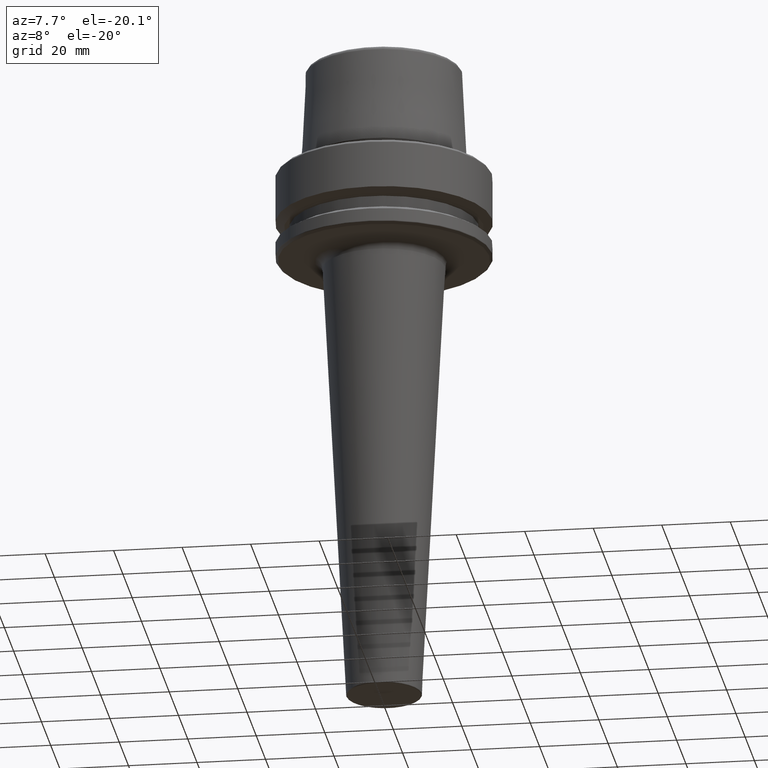
[diagram: clean part render]
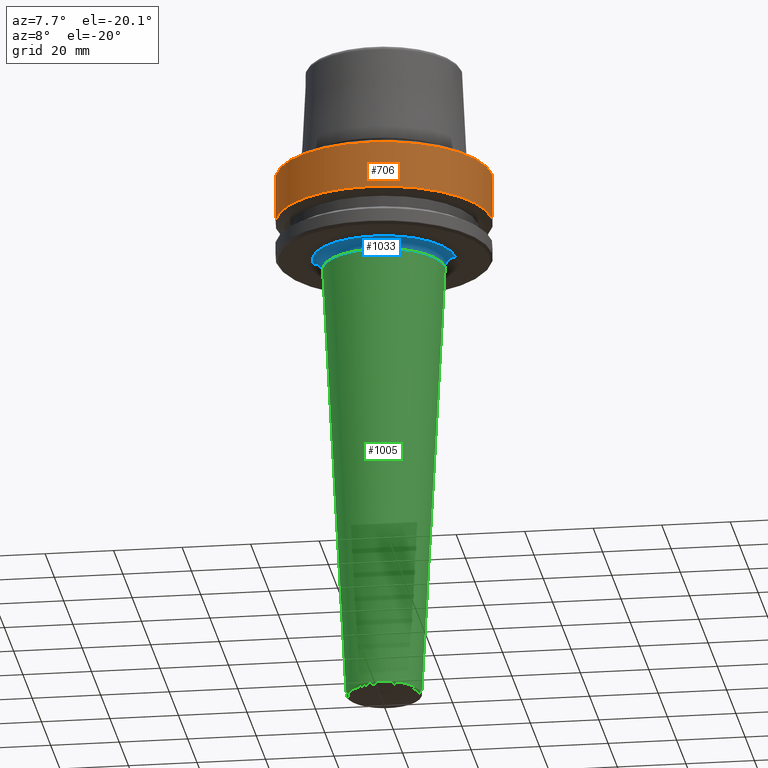
[diagram: same view with three faces highlighted in distinct colors, each labeled with its STEP entity id]
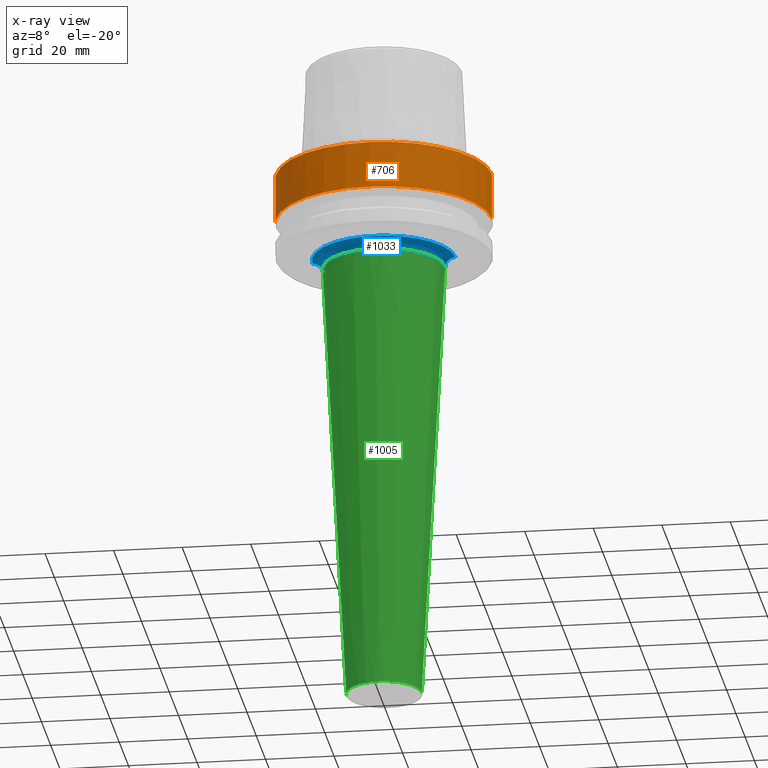
[diagram: x-ray of the same camera — body ghosted, the three highlighted faces saturated]
A machine part, auxiliary view with three faces highlighted in distinct colors.
The next image is the same camera in x-ray (body ghosted, the three faces saturated) — at least one of them is partly hidden behind the body in this view.
Their STEP definitions:

[orange] entity #706 — the highlighted cylindrical surface (partial cylindrical patch) has radius 31.5 mm, axis along (-0, -0, 1).
#16 = AXIS2_PLACEMENT_3D ( 'NONE', #748, #1180, #571 ) ;
#28 = CARTESIAN_POINT ( 'NONE',  ( -31.50000000000000700, 3.857637417314163500E-015, -0.9656854249492363700 ) ) ;
#32 = ORIENTED_EDGE ( 'NONE', *, *, #811, .T. ) ;
#53 = VECTOR ( 'NONE', #508, 1000.000000000000000 ) ;
#85 = DIRECTION ( 'NONE',  ( -0.0000000000000000000, -0.0000000000000000000, 1.000000000000000000 ) ) ;
#90 = VERTEX_POINT ( 'NONE', #743 ) ;
#233 = EDGE_CURVE ( 'NONE', #624, #295, #541, .T. ) ;
#252 = CARTESIAN_POINT ( 'NONE',  ( 0.0000000000000000000, 0.0000000000000000000, -0.9656854249492363700 ) ) ;
#295 = VERTEX_POINT ( 'NONE', #445 ) ;
#325 = AXIS2_PLACEMENT_3D ( 'NONE', #252, #85, #769 ) ;
#347 = LINE ( 'NONE', #973, #53 ) ;
#363 = FACE_OUTER_BOUND ( 'NONE', #1024, .T. ) ;
#371 = VERTEX_POINT ( 'NONE', #515 ) ;
#415 = AXIS2_PLACEMENT_3D ( 'NONE', #831, #1222, #759 ) ;
#417 = ORIENTED_EDGE ( 'NONE', *, *, #443, .T. ) ;
#443 = EDGE_CURVE ( 'NONE', #371, #295, #703, .T. ) ;
#445 = CARTESIAN_POINT ( 'NONE',  ( 31.50000000000000700, 0.0000000000000000000, -0.9656854249492363700 ) ) ;
#476 = DIRECTION ( 'NONE',  ( -0.0000000000000000000, -0.0000000000000000000, 1.000000000000000000 ) ) ;
#508 = DIRECTION ( 'NONE',  ( -0.0000000000000000000, -0.0000000000000000000, 1.000000000000000000 ) ) ;
#515 = CARTESIAN_POINT ( 'NONE',  ( 31.50000000000000000, 0.0000000000000000000, -14.62250092524070100 ) ) ;
#541 = CIRCLE ( 'NONE', #325, 31.50000000000000700 ) ;
#571 = DIRECTION ( 'NONE',  ( 1.000000000000000000, 0.0000000000000000000, 0.0000000000000000000 ) ) ;
#624 = VERTEX_POINT ( 'NONE', #28 ) ;
#630 = ORIENTED_EDGE ( 'NONE', *, *, #233, .F. ) ;
#657 = CIRCLE ( 'NONE', #16, 31.50000000000000000 ) ;
#676 = EDGE_CURVE ( 'NONE', #90, #624, #347, .T. ) ;
#703 = LINE ( 'NONE', #851, #855 ) ;
#706 = ADVANCED_FACE ( 'NONE', ( #363 ), #1132, .T. ) ;
#743 = CARTESIAN_POINT ( 'NONE',  ( -31.50000000000000000, 3.857637417314162700E-015, -14.62250092524070100 ) ) ;
#748 = CARTESIAN_POINT ( 'NONE',  ( 0.0000000000000000000, 0.0000000000000000000, -14.62250092524070100 ) ) ;
#759 = DIRECTION ( 'NONE',  ( 1.000000000000000000, 0.0000000000000000000, 0.0000000000000000000 ) ) ;
#769 = DIRECTION ( 'NONE',  ( 1.000000000000000000, 0.0000000000000000000, 0.0000000000000000000 ) ) ;
#811 = EDGE_CURVE ( 'NONE', #90, #371, #657, .T. ) ;
#831 = CARTESIAN_POINT ( 'NONE',  ( 0.0000000000000000000, 0.0000000000000000000, 78.96908074195309300 ) ) ;
#851 = CARTESIAN_POINT ( 'NONE',  ( 31.50000000000000000, 0.0000000000000000000, 78.96908074195309300 ) ) ;
#855 = VECTOR ( 'NONE', #476, 1000.000000000000000 ) ;
#973 = CARTESIAN_POINT ( 'NONE',  ( -31.50000000000000000, 3.857637417314162700E-015, 78.96908074195309300 ) ) ;
#1024 = EDGE_LOOP ( 'NONE', ( #1116, #32, #417, #630 ) ) ;
#1116 = ORIENTED_EDGE ( 'NONE', *, *, #676, .F. ) ;
#1132 = CYLINDRICAL_SURFACE ( 'NONE', #415, 31.50000000000000000 ) ;
#1180 = DIRECTION ( 'NONE',  ( -0.0000000000000000000, -0.0000000000000000000, 1.000000000000000000 ) ) ;
#1222 = DIRECTION ( 'NONE',  ( -0.0000000000000000000, -0.0000000000000000000, 1.000000000000000000 ) ) ;

[blue] entity #1033 — the highlighted toroidal blend (fillet) surface has major radius 20.8695 mm and minor (blend) radius 3 mm.
#22 = CARTESIAN_POINT ( 'NONE',  ( -17.87364751980845800, 2.188890522422145600E-015, -28.84299213127116700 ) ) ;
#39 = ORIENTED_EDGE ( 'NONE', *, *, #1190, .F. ) ;
#89 = CARTESIAN_POINT ( 'NONE',  ( 0.0000000000000000000, 0.0000000000000000000, -28.84299213127116700 ) ) ;
#91 = AXIS2_PLACEMENT_3D ( 'NONE', #1062, #956, #680 ) ;
#113 = DIRECTION ( 'NONE',  ( -0.0000000000000000000, -0.0000000000000000000, 1.000000000000000000 ) ) ;
#178 = FACE_OUTER_BOUND ( 'NONE', #1170, .T. ) ;
#192 = EDGE_CURVE ( 'NONE', #424, #761, #960, .T. ) ;
#216 = CIRCLE ( 'NONE', #843, 20.86953612407217700 ) ;
#224 = DIRECTION ( 'NONE',  ( 1.000000000000000000, 0.0000000000000000000, 0.0000000000000000000 ) ) ;
#411 = AXIS2_PLACEMENT_3D ( 'NONE', #558, #1242, #1140 ) ;
#424 = VERTEX_POINT ( 'NONE', #846 ) ;
#463 = VERTEX_POINT ( 'NONE', #22 ) ;
#466 = AXIS2_PLACEMENT_3D ( 'NONE', #1011, #971, #939 ) ;
#469 = ORIENTED_EDGE ( 'NONE', *, *, #1172, .T. ) ;
#487 = DIRECTION ( 'NONE',  ( 0.0000000000000000000, 0.0000000000000000000, -1.000000000000000000 ) ) ;
#488 = CARTESIAN_POINT ( 'NONE',  ( -20.86953612407217700, 2.555781061403505100E-015, -26.00000000000000400 ) ) ;
#558 = CARTESIAN_POINT ( 'NONE',  ( 20.86953612407217700, 0.0000000000000000000, -28.99999999999999600 ) ) ;
#590 = CARTESIAN_POINT ( 'NONE',  ( 0.0000000000000000000, 0.0000000000000000000, -26.00000000000000700 ) ) ;
#677 = ORIENTED_EDGE ( 'NONE', *, *, #1105, .F. ) ;
#680 = DIRECTION ( 'NONE',  ( -1.000000000000000000, 1.224646799147353500E-016, 0.0000000000000000000 ) ) ;
#709 = TOROIDAL_SURFACE ( 'NONE', #466, 20.86953612407217700, 3.000000000000000000 ) ;
#710 = CIRCLE ( 'NONE', #91, 2.999999999999999100 ) ;
#761 = VERTEX_POINT ( 'NONE', #837 ) ;
#800 = ORIENTED_EDGE ( 'NONE', *, *, #192, .F. ) ;
#837 = CARTESIAN_POINT ( 'NONE',  ( 17.87364751980845800, 0.0000000000000000000, -28.84299213127116700 ) ) ;
#843 = AXIS2_PLACEMENT_3D ( 'NONE', #590, #113, #224 ) ;
#846 = CARTESIAN_POINT ( 'NONE',  ( 20.86953612407217700, 0.0000000000000000000, -26.00000000000000400 ) ) ;
#921 = DIRECTION ( 'NONE',  ( 1.000000000000000000, 0.0000000000000000000, 0.0000000000000000000 ) ) ;
#939 = DIRECTION ( 'NONE',  ( 1.000000000000000000, 0.0000000000000000000, 0.0000000000000000000 ) ) ;
#956 = DIRECTION ( 'NONE',  ( 1.224646799147353200E-016, 1.000000000000000000, 0.0000000000000000000 ) ) ;
#960 = CIRCLE ( 'NONE', #411, 3.000000000000002700 ) ;
#971 = DIRECTION ( 'NONE',  ( -0.0000000000000000000, -0.0000000000000000000, 1.000000000000000000 ) ) ;
#1011 = CARTESIAN_POINT ( 'NONE',  ( 0.0000000000000000000, 0.0000000000000000000, -28.99999999999999600 ) ) ;
#1033 = ADVANCED_FACE ( 'NONE', ( #178 ), #709, .F. ) ;
#1053 = CIRCLE ( 'NONE', #1246, 17.87364751980845800 ) ;
#1062 = CARTESIAN_POINT ( 'NONE',  ( -20.86953612407217700, 2.555781061403505100E-015, -28.99999999999999600 ) ) ;
#1105 = EDGE_CURVE ( 'NONE', #761, #463, #1053, .T. ) ;
#1140 = DIRECTION ( 'NONE',  ( 0.0000000000000000000, 0.0000000000000000000, -1.000000000000000000 ) ) ;
#1170 = EDGE_LOOP ( 'NONE', ( #39, #469, #677, #800 ) ) ;
#1172 = EDGE_CURVE ( 'NONE', #1250, #463, #710, .T. ) ;
#1190 = EDGE_CURVE ( 'NONE', #1250, #424, #216, .T. ) ;
#1242 = DIRECTION ( 'NONE',  ( 0.0000000000000000000, -1.000000000000000000, 0.0000000000000000000 ) ) ;
#1246 = AXIS2_PLACEMENT_3D ( 'NONE', #89, #487, #921 ) ;
#1250 = VERTEX_POINT ( 'NONE', #488 ) ;

[green] entity #1005 — the highlighted conical surface has half-angle 3 deg.
#22 = CARTESIAN_POINT ( 'NONE',  ( -17.87364751980845800, 2.188890522422145600E-015, -28.84299213127116700 ) ) ;
#38 = EDGE_CURVE ( 'NONE', #701, #463, #405, .T. ) ;
#89 = CARTESIAN_POINT ( 'NONE',  ( 0.0000000000000000000, 0.0000000000000000000, -28.84299213127116700 ) ) ;
#126 = VECTOR ( 'NONE', #629, 1000.000000000000100 ) ;
#228 = ORIENTED_EDGE ( 'NONE', *, *, #1105, .T. ) ;
#263 = CARTESIAN_POINT ( 'NONE',  ( -11.01986598721588200, 1.349544360827671700E-015, -159.6209343824971300 ) ) ;
#272 = FACE_OUTER_BOUND ( 'NONE', #997, .T. ) ;
#348 = CARTESIAN_POINT ( 'NONE',  ( -11.01986598721587800, 1.349544360827671300E-015, -159.6209343824971300 ) ) ;
#359 = LINE ( 'NONE', #768, #532 ) ;
#405 = LINE ( 'NONE', #348, #126 ) ;
#406 = DIRECTION ( 'NONE',  ( 1.000000000000000000, 0.0000000000000000000, 0.0000000000000000000 ) ) ;
#463 = VERTEX_POINT ( 'NONE', #22 ) ;
#487 = DIRECTION ( 'NONE',  ( 0.0000000000000000000, 0.0000000000000000000, -1.000000000000000000 ) ) ;
#531 = CARTESIAN_POINT ( 'NONE',  ( 0.0000000000000000000, 0.0000000000000000000, -159.6209343824971300 ) ) ;
#532 = VECTOR ( 'NONE', #563, 1000.000000000000100 ) ;
#563 = DIRECTION ( 'NONE',  ( 0.05233595624294397300, 0.0000000000000000000, 0.9986295347545739400 ) ) ;
#629 = DIRECTION ( 'NONE',  ( -0.05233595624294397300, 6.409306129323727100E-018, 0.9986295347545739400 ) ) ;
#651 = ORIENTED_EDGE ( 'NONE', *, *, #679, .T. ) ;
#673 = CIRCLE ( 'NONE', #827, 11.01986598721587800 ) ;
#679 = EDGE_CURVE ( 'NONE', #701, #1092, #673, .T. ) ;
#701 = VERTEX_POINT ( 'NONE', #263 ) ;
#714 = DIRECTION ( 'NONE',  ( 1.000000000000000000, 0.0000000000000000000, 0.0000000000000000000 ) ) ;
#730 = CARTESIAN_POINT ( 'NONE',  ( 11.01986598721588200, 0.0000000000000000000, -159.6209343824971300 ) ) ;
#761 = VERTEX_POINT ( 'NONE', #837 ) ;
#762 = DIRECTION ( 'NONE',  ( -0.0000000000000000000, -0.0000000000000000000, 1.000000000000000000 ) ) ;
#768 = CARTESIAN_POINT ( 'NONE',  ( 11.01986598721587800, 0.0000000000000000000, -159.6209343824971300 ) ) ;
#827 = AXIS2_PLACEMENT_3D ( 'NONE', #833, #1018, #406 ) ;
#833 = CARTESIAN_POINT ( 'NONE',  ( 0.0000000000000000000, 0.0000000000000000000, -159.6209343824971300 ) ) ;
#837 = CARTESIAN_POINT ( 'NONE',  ( 17.87364751980845800, 0.0000000000000000000, -28.84299213127116700 ) ) ;
#921 = DIRECTION ( 'NONE',  ( 1.000000000000000000, 0.0000000000000000000, 0.0000000000000000000 ) ) ;
#927 = CONICAL_SURFACE ( 'NONE', #1095, 11.01986598721587800, 0.05235987755983002200 ) ;
#972 = ORIENTED_EDGE ( 'NONE', *, *, #38, .F. ) ;
#997 = EDGE_LOOP ( 'NONE', ( #972, #651, #1070, #228 ) ) ;
#1005 = ADVANCED_FACE ( 'NONE', ( #272 ), #927, .T. ) ;
#1018 = DIRECTION ( 'NONE',  ( -0.0000000000000000000, -0.0000000000000000000, 1.000000000000000000 ) ) ;
#1053 = CIRCLE ( 'NONE', #1246, 17.87364751980845800 ) ;
#1070 = ORIENTED_EDGE ( 'NONE', *, *, #1139, .T. ) ;
#1092 = VERTEX_POINT ( 'NONE', #730 ) ;
#1095 = AXIS2_PLACEMENT_3D ( 'NONE', #531, #762, #714 ) ;
#1105 = EDGE_CURVE ( 'NONE', #761, #463, #1053, .T. ) ;
#1139 = EDGE_CURVE ( 'NONE', #1092, #761, #359, .T. ) ;
#1246 = AXIS2_PLACEMENT_3D ( 'NONE', #89, #487, #921 ) ;